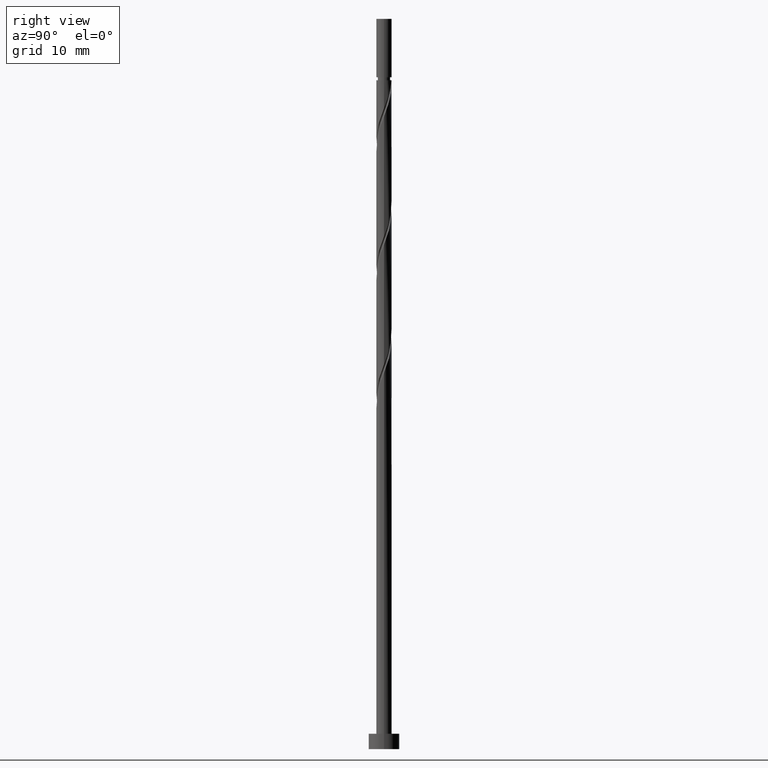
[diagram: clean part render]
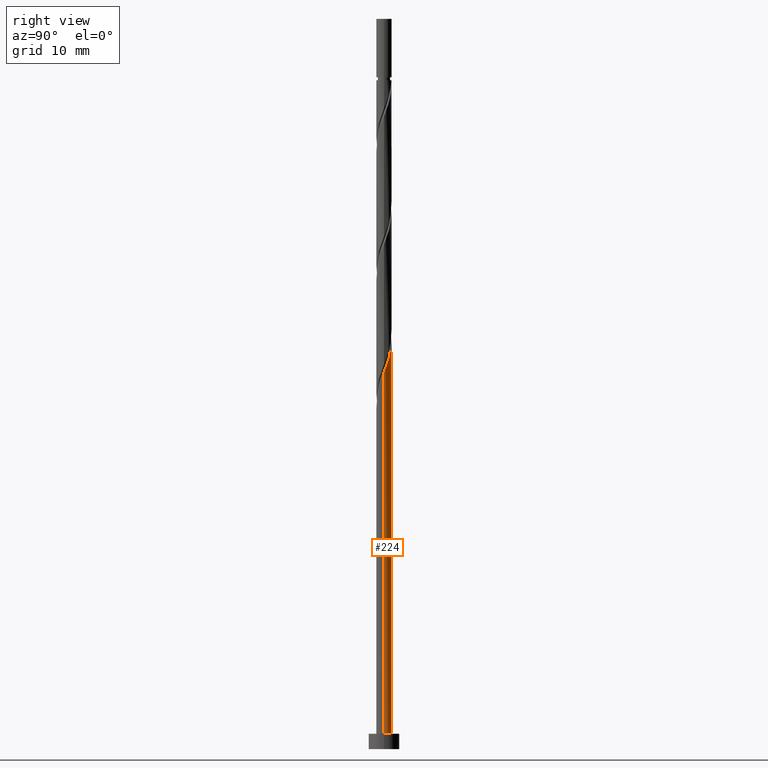
[diagram: same view with one face highlighted and labeled with its STEP entity id]
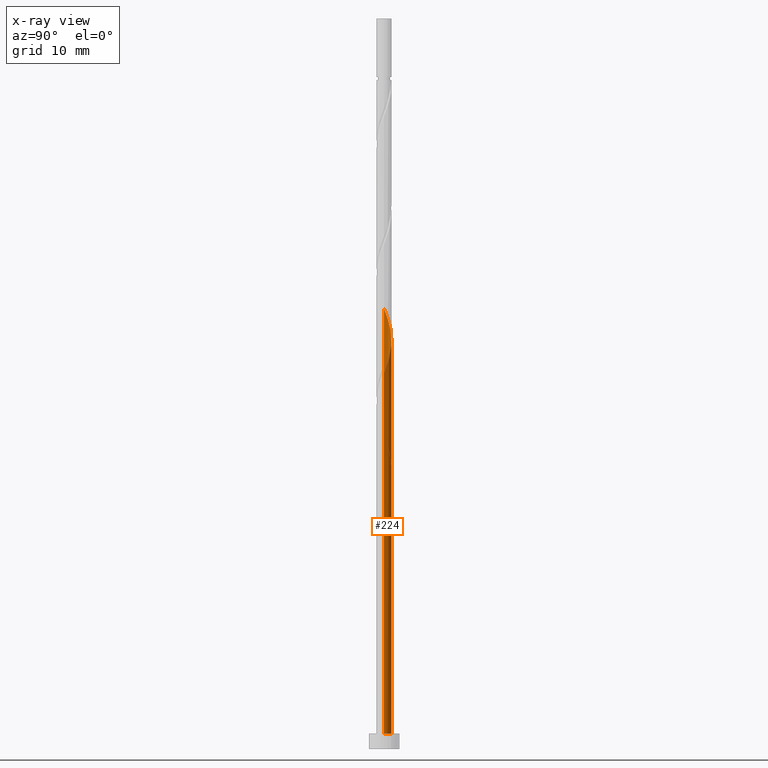
[diagram: x-ray of the same camera — body ghosted, the highlighted face saturated]
A machine part, right view. The second image highlights one B-rep face of the part: STEP entity #224.
The next image is the same camera in x-ray: the body ghosted, the highlighted face saturated — about 0% of this face is hidden behind the body in this view.
In plain terms, the highlighted cylindrical surface (edge-blend (fillet) strip) has radius 1 mm, axis along (-0, -0, -1).
Its self-contained STEP definition (entity closure, byte-faithful):
#30 = CIRCLE ( 'NONE', #874, 1.000000000000000000 ) ;
#41 =( BOUNDED_CURVE ( )  B_SPLINE_CURVE ( 2, ( #728, #180, #1074, #650, #545, #1086, #671, #172, #411, #875, #182, #422, #1226 ),
 .UNSPECIFIED., .F., .T. ) 
 B_SPLINE_CURVE_WITH_KNOTS ( ( 3, 2, 2, 2, 2, 2, 3 ),
 ( 0.9295248053855652559, 0.9305555555555555802, 0.9444444444444444198, 0.9583333333333333703, 0.9722222222222222099, 0.9861111111111111605, 1.000000000000000000 ),
 .UNSPECIFIED. ) 
 CURVE ( )  GEOMETRIC_REPRESENTATION_ITEM ( )  RATIONAL_B_SPLINE_CURVE ( ( 0.9071930855141919769, 0.9080659294510142754, 0.9090909090909183865, 0.8952797754656529605, 0.9090909090909183865, 0.8952797754656529605, 0.9090909090909183865, 0.8952797754656529605, 0.9090909090909183865, 0.8952797754656529605, 0.9090909090909183865, 0.8952797754656529605, 0.9090909090909183865 ) ) 
 REPRESENTATION_ITEM ( '' )  );
#50 =( BOUNDED_CURVE ( )  B_SPLINE_CURVE ( 2, ( #693, #686, #591, #805, #576, #582, #475, #345, #933 ),
 .UNSPECIFIED., .F., .T. ) 
 B_SPLINE_CURVE_WITH_KNOTS ( ( 3, 2, 2, 2, 3 ),
 ( 0.000000000000000000, 0.01388888888888884128, 0.02777777777777779011, 0.04166666666666662966, 0.05452480538552961775 ),
 .UNSPECIFIED. ) 
 CURVE ( )  GEOMETRIC_REPRESENTATION_ITEM ( )  RATIONAL_B_SPLINE_CURVE ( ( 0.9090909090909280454, 0.8952797754656623974, 0.9090909090909280454, 0.8952797754656623974, 0.9090909090909280454, 0.8952797754656623974, 0.9090909090909280454, 0.8963047551056019246, 0.9071930855141412398 ) ) 
 REPRESENTATION_ITEM ( '' )  );
#62 = VERTEX_POINT ( 'NONE', #1392 ) ;
#68 = CARTESIAN_POINT ( 'NONE',  ( -0.02619704632702447161, 1.015088626125574489, 53.22196415157942795 ) ) ;
#78 = VERTEX_POINT ( 'NONE', #139 ) ;
#96 = FACE_OUTER_BOUND ( 'NONE', #659, .T. ) ;
#110 = CARTESIAN_POINT ( 'NONE',  ( -1.000000000000000888, 0.1630543718204600645, 56.89081938052134291 ) ) ;
#113 = ORIENTED_EDGE ( 'NONE', *, *, #472, .T. ) ;
#139 = CARTESIAN_POINT ( 'NONE',  ( 0.1989974874213210343, 0.9800000000000025357, 37.01826044787571846 ) ) ;
#172 = CARTESIAN_POINT ( 'NONE',  ( -0.6324182898423038601, 0.7944421381061699261, 39.33307526269052801 ) ) ;
#175 = CARTESIAN_POINT ( 'NONE',  ( 0.4774909380590689478, 0.8786366735297777009, 51.83307526269053511 ) ) ;
#180 = CARTESIAN_POINT ( 'NONE',  ( -0.9999999999999902300, 0.01290167433247048703, 41.68176462893094225 ) ) ;
#182 = CARTESIAN_POINT ( 'NONE',  ( -0.1481832699744045634, 0.9889599175394805375, 37.94418637380164938 ) ) ;
#209 = DIRECTION ( 'NONE',  ( 0.000000000000000000, 0.000000000000000000, 1.000000000000000000 ) ) ;
#224 = ADVANCED_FACE ( 'NONE', ( #96 ), #561, .T. ) ;
#248 = VECTOR ( 'NONE', #751, 1000.000000000000000 ) ;
#254 = CARTESIAN_POINT ( 'NONE',  ( -1.000000000000001776, -1.217525773571816888E-15, 57.32073889288697899 ) ) ;
#270 = DIRECTION ( 'NONE',  ( -0.000000000000000000, -0.000000000000000000, -1.000000000000000000 ) ) ;
#295 = DIRECTION ( 'NONE',  ( -1.000000000000000000, 0.000000000000000000, 0.000000000000000000 ) ) ;
#310 = CARTESIAN_POINT ( 'NONE',  ( 0.000000000000000000, 0.000000000000000000, 2.000000000000000000 ) ) ;
#311 = LINE ( 'NONE', #439, #1415 ) ;
#325 = CARTESIAN_POINT ( 'NONE',  ( 0.000000000000000000, 0.000000000000000000, 37.01826044787571135 ) ) ;
#335 = CARTESIAN_POINT ( 'NONE',  ( -1.000000000000001776, -1.217525773571817085E-15, 57.32073889288697899 ) ) ;
#336 = EDGE_CURVE ( 'NONE', #463, #370, #1456, .T. ) ;
#339 = CARTESIAN_POINT ( 'NONE',  ( 1.000000000000000000, 1.224646799147352961E-16, 2.000000000000000000 ) ) ;
#345 = CARTESIAN_POINT ( 'NONE',  ( -1.000000000000003109, 0.1630543718204539583, 40.22415271385468571 ) ) ;
#370 = VERTEX_POINT ( 'NONE', #884 ) ;
#380 = EDGE_CURVE ( 'NONE', #969, #370, #606, .T. ) ;
#402 =( BOUNDED_CURVE ( )  B_SPLINE_CURVE ( 2, ( #984, #1465, #1446, #443, #1471, #869, #1319, #755, #175, #1337, #774, #68, #1216, #532, #416, #879, #1329, #1246, #1384, #110, #254 ),
 .UNSPECIFIED., .F., .T. ) 
 B_SPLINE_CURVE_WITH_KNOTS ( ( 3, 2, 2, 2, 2, 2, 2, 2, 2, 2, 3 ),
 ( 0.1795248053855292014, 0.1805555555555555802, 0.1944444444444444198, 0.2083333333333333703, 0.2222222222222222099, 0.2361111111111111605, 0.2500000000000000000, 0.2638888888888888395, 0.2777777777777777901, 0.2916666666666666297, 0.3045248053855291182 ),
 .UNSPECIFIED. ) 
 CURVE ( )  GEOMETRIC_REPRESENTATION_ITEM ( )  RATIONAL_B_SPLINE_CURVE ( ( 0.9071930855141404626, 0.9080659294509880741, 0.9090909090909280454, 0.8952797754656623974, 0.9090909090909280454, 0.8952797754656623974, 0.9090909090909280454, 0.8952797754656623974, 0.9090909090909280454, 0.8952797754656623974, 0.9090909090909280454, 0.8952797754656623974, 0.9090909090909280454, 0.8952797754656623974, 0.9090909090909280454, 0.8952797754656623974, 0.9090909090909280454, 0.8952797754656623974, 0.9090909090909280454, 0.8963047551056024798, 0.9071930855141403516 ) ) 
 REPRESENTATION_ITEM ( '' )  );
#411 = CARTESIAN_POINT ( 'NONE',  ( -0.4774909380590686703, 0.8786366735297782560, 38.87011229972757320 ) ) ;
#416 = CARTESIAN_POINT ( 'NONE',  ( -0.5221762109439075372, 0.8528376192009042844, 54.61085304046832078 ) ) ;
#422 = CARTESIAN_POINT ( 'NONE',  ( 0.02619704632702449590, 1.015088626125574711, 37.48122341083867326 ) ) ;
#439 = CARTESIAN_POINT ( 'NONE',  ( 1.000000000000000000, 1.224646799147352961E-16, 95.00000000000000000 ) ) ;
#443 = CARTESIAN_POINT ( 'NONE',  ( 0.9951180796480326718, 0.2020673444260075446, 49.51826044787572556 ) ) ;
#463 = VERTEX_POINT ( 'NONE', #892 ) ;
#472 = EDGE_CURVE ( 'NONE', #1269, #969, #311, .T. ) ;
#475 = CARTESIAN_POINT ( 'NONE',  ( -0.9482036394194119922, 0.3176631206038632582, 39.79603822565349702 ) ) ;
#480 = ORIENTED_EDGE ( 'NONE', *, *, #731, .F. ) ;
#490 = VERTEX_POINT ( 'NONE', #335 ) ;
#532 = CARTESIAN_POINT ( 'NONE',  ( -0.3717979285156166602, 0.9449113738744300273, 54.14789007750535177 ) ) ;
#541 = DIRECTION ( 'NONE',  ( 0.000000000000000000, 0.000000000000000000, -1.000000000000000000 ) ) ;
#545 = CARTESIAN_POINT ( 'NONE',  ( -0.9305560469009561686, 0.3661494825560581701, 40.72196415157942795 ) ) ;
#561 = CYLINDRICAL_SURFACE ( 'NONE', #1135, 1.000000000000000000 ) ;
#576 = CARTESIAN_POINT ( 'NONE',  ( -0.7823727769265514942, 0.6228104349834223674, 38.87011229972756610 ) ) ;
#582 = CARTESIAN_POINT ( 'NONE',  ( -0.8921910604809037970, 0.4848570054394661932, 39.33307526269053511 ) ) ;
#591 = CARTESIAN_POINT ( 'NONE',  ( -0.5221762109439075372, 0.8528376192009042844, 37.94418637380164938 ) ) ;
#606 = CIRCLE ( 'NONE', #1120, 1.000000000000000000 ) ;
#615 = CARTESIAN_POINT ( 'NONE',  ( 1.000000000000001554, -1.577928341515621780E-15, 48.98740555955362908 ) ) ;
#650 = CARTESIAN_POINT ( 'NONE',  ( -0.9951180796480328938, 0.2020673444260077944, 41.18492711454237565 ) ) ;
#659 = EDGE_LOOP ( 'NONE', ( #1380, #113, #809, #784, #1127, #1211, #480, #1457 ) ) ;
#671 = CARTESIAN_POINT ( 'NONE',  ( -0.7492061519980917073, 0.6623368793961393886, 39.79603822565349702 ) ) ;
#679 = CARTESIAN_POINT ( 'NONE',  ( -0.1989974874213205625, 0.9800000000000025357, 37.01826044787571846 ) ) ;
#686 = CARTESIAN_POINT ( 'NONE',  ( -0.3717979285156166602, 0.9449113738744300273, 37.48122341083870168 ) ) ;
#688 = VERTEX_POINT ( 'NONE', #679 ) ;
#693 = CARTESIAN_POINT ( 'NONE',  ( -0.1989974874213205902, 0.9800000000000025357, 37.01826044787571846 ) ) ;
#728 = CARTESIAN_POINT ( 'NONE',  ( -1.000000000000001776, 9.054264865865223989E-13, 41.71578200286209892 ) ) ;
#731 = EDGE_CURVE ( 'NONE', #62, #78, #41, .T. ) ;
#751 = DIRECTION ( 'NONE',  ( -0.000000000000000000, -0.000000000000000000, -1.000000000000000000 ) ) ;
#755 = CARTESIAN_POINT ( 'NONE',  ( 0.6324182898423037491, 0.7944421381061698151, 51.37011229972757320 ) ) ;
#774 = CARTESIAN_POINT ( 'NONE',  ( 0.1481832699744052573, 0.9889599175394800934, 52.75900118861645893 ) ) ;
#784 = ORIENTED_EDGE ( 'NONE', *, *, #336, .F. ) ;
#805 = CARTESIAN_POINT ( 'NONE',  ( -0.6725544933721987473, 0.7607638645273787636, 38.40714933676460419 ) ) ;
#809 = ORIENTED_EDGE ( 'NONE', *, *, #380, .T. ) ;
#829 = EDGE_CURVE ( 'NONE', #688, #78, #30, .T. ) ;
#869 = CARTESIAN_POINT ( 'NONE',  ( 0.8659940141538798875, 0.5302316206861077408, 50.44418637380165649 ) ) ;
#874 = AXIS2_PLACEMENT_3D ( 'NONE', #325, #541, #295 ) ;
#875 = CARTESIAN_POINT ( 'NONE',  ( -0.3225635862758337580, 0.9628312089533865858, 38.40714933676461129 ) ) ;
#879 = CARTESIAN_POINT ( 'NONE',  ( -0.6725544933721987473, 0.7607638645273787636, 55.07381600343127559 ) ) ;
#884 = CARTESIAN_POINT ( 'NONE',  ( -1.000000000000000000, 0.000000000000000000, 2.000000000000000000 ) ) ;
#885 = EDGE_CURVE ( 'NONE', #1269, #490, #402, .T. ) ;
#892 = CARTESIAN_POINT ( 'NONE',  ( -1.000000000000001776, -1.217525773571817085E-15, 40.65407222622031469 ) ) ;
#900 = DIRECTION ( 'NONE',  ( -0.000000000000000000, -0.000000000000000000, -1.000000000000000000 ) ) ;
#933 = CARTESIAN_POINT ( 'NONE',  ( -1.000000000000001776, -1.217525773571817085E-15, 40.65407222622031469 ) ) ;
#934 = EDGE_CURVE ( 'NONE', #688, #463, #50, .T. ) ;
#940 = CARTESIAN_POINT ( 'NONE',  ( -1.000000000000000000, 0.000000000000000000, 95.00000000000000000 ) ) ;
#963 = VECTOR ( 'NONE', #270, 1000.000000000000000 ) ;
#969 = VERTEX_POINT ( 'NONE', #339 ) ;
#984 = CARTESIAN_POINT ( 'NONE',  ( 1.000000000000001554, -1.577928341515621780E-15, 48.98740555955362908 ) ) ;
#1053 = CARTESIAN_POINT ( 'NONE',  ( -1.000000000000000000, 0.000000000000000000, 95.00000000000000000 ) ) ;
#1074 = CARTESIAN_POINT ( 'NONE',  ( -0.9996671490029767071, 0.02579905432887377378, 41.64789007750536598 ) ) ;
#1086 = CARTESIAN_POINT ( 'NONE',  ( -0.8659940141538794434, 0.5302316206861082959, 40.25900118861644472 ) ) ;
#1120 = AXIS2_PLACEMENT_3D ( 'NONE', #310, #209, #1244 ) ;
#1123 = DIRECTION ( 'NONE',  ( -0.000000000000000000, -0.000000000000000000, -1.000000000000000000 ) ) ;
#1127 = ORIENTED_EDGE ( 'NONE', *, *, #934, .F. ) ;
#1135 = AXIS2_PLACEMENT_3D ( 'NONE', #1485, #1123, #1470 ) ;
#1211 = ORIENTED_EDGE ( 'NONE', *, *, #829, .T. ) ;
#1216 = CARTESIAN_POINT ( 'NONE',  ( -0.1989974874213203404, 0.9800000000000025357, 53.68492711454238986 ) ) ;
#1226 = CARTESIAN_POINT ( 'NONE',  ( 0.1989974874213210065, 0.9800000000000025357, 37.01826044787571846 ) ) ;
#1244 = DIRECTION ( 'NONE',  ( 1.000000000000000000, 0.000000000000000000, 0.000000000000000000 ) ) ;
#1246 = CARTESIAN_POINT ( 'NONE',  ( -0.8921910604809037970, 0.4848570054394661932, 55.99974192935719941 ) ) ;
#1269 = VERTEX_POINT ( 'NONE', #615 ) ;
#1308 = LINE ( 'NONE', #1053, #963 ) ;
#1319 = CARTESIAN_POINT ( 'NONE',  ( 0.7492061519980914852, 0.6623368793961392775, 50.90714933676461840 ) ) ;
#1329 = CARTESIAN_POINT ( 'NONE',  ( -0.7823727769265514942, 0.6228104349834223674, 55.53677896639424461 ) ) ;
#1332 = EDGE_CURVE ( 'NONE', #490, #62, #1308, .T. ) ;
#1337 = CARTESIAN_POINT ( 'NONE',  ( 0.3225635862758341466, 0.9628312089533860307, 52.29603822565348992 ) ) ;
#1380 = ORIENTED_EDGE ( 'NONE', *, *, #885, .F. ) ;
#1384 = CARTESIAN_POINT ( 'NONE',  ( -0.9482036394194119922, 0.3176631206038632582, 56.46270489232017553 ) ) ;
#1392 = CARTESIAN_POINT ( 'NONE',  ( -1.000000000000001776, 9.054264865865223989E-13, 41.71578200286209892 ) ) ;
#1415 = VECTOR ( 'NONE', #900, 1000.000000000000000 ) ;
#1446 = CARTESIAN_POINT ( 'NONE',  ( 0.9996671490029763740, 0.02579905432887377725, 49.05529748491276365 ) ) ;
#1456 = LINE ( 'NONE', #940, #248 ) ;
#1457 = ORIENTED_EDGE ( 'NONE', *, *, #1332, .F. ) ;
#1465 = CARTESIAN_POINT ( 'NONE',  ( 1.000000000000001776, 0.01290167433201879800, 49.02142293348600077 ) ) ;
#1470 = DIRECTION ( 'NONE',  ( -1.000000000000000000, 0.000000000000000000, 0.000000000000000000 ) ) ;
#1471 = CARTESIAN_POINT ( 'NONE',  ( 0.9305560469009561686, 0.3661494825560575594, 49.98122341083868037 ) ) ;
#1485 = CARTESIAN_POINT ( 'NONE',  ( 0.000000000000000000, 0.000000000000000000, 95.00000000000000000 ) ) ;